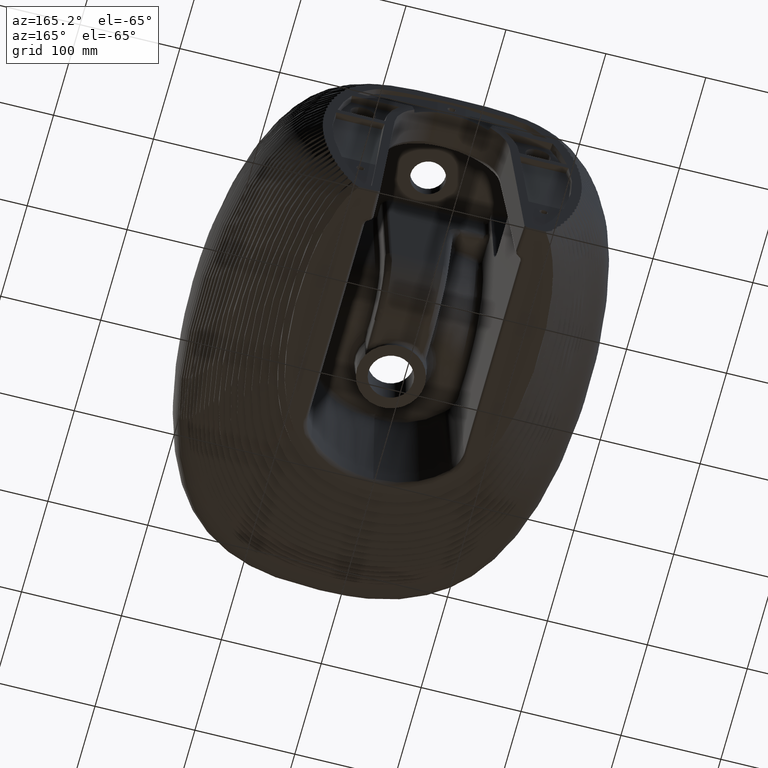
[diagram: clean part render]
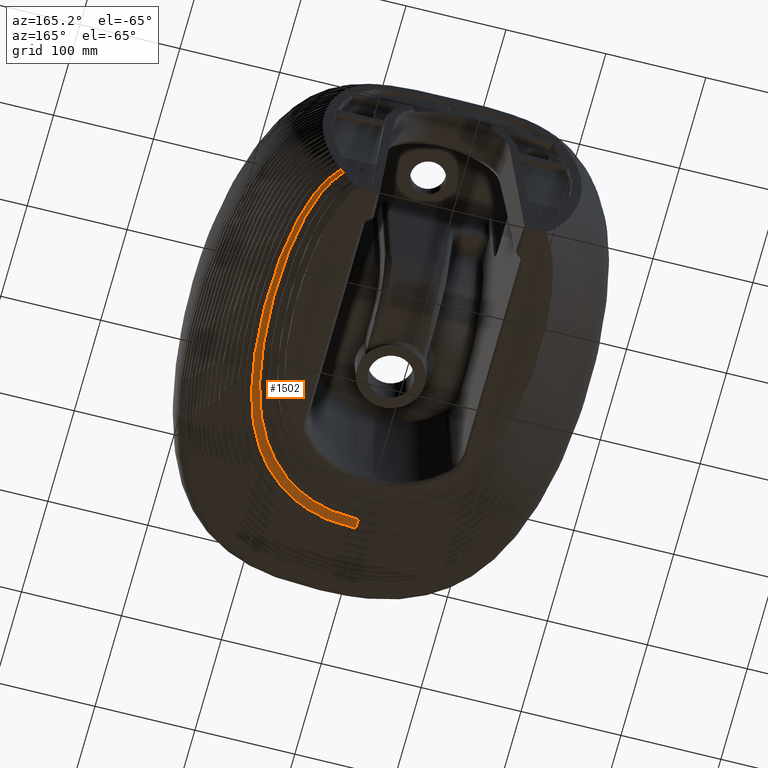
[diagram: same view with one face highlighted and labeled with its STEP entity id]
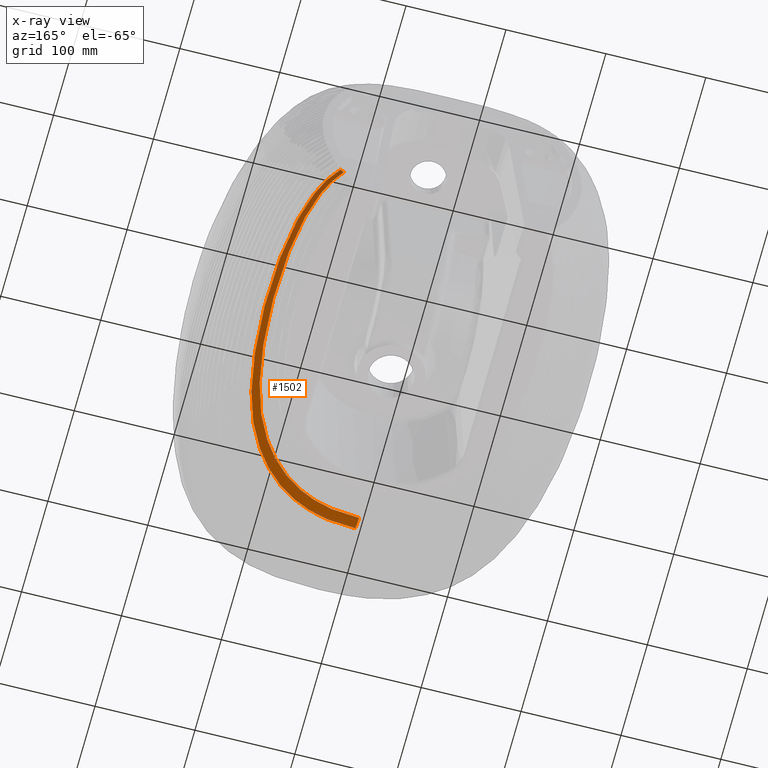
[diagram: x-ray of the same camera — body ghosted, the highlighted face saturated]
A machine part, auxiliary view. The second image highlights one B-rep face of the part: STEP entity #1502.
The next image is the same camera in x-ray: the body ghosted, the highlighted face saturated — about 0% of this face is hidden behind the body in this view.
In plain terms, the highlighted face is a freeform B-spline surface patch.
Its self-contained STEP definition (entity closure, byte-faithful):
#292=B_SPLINE_SURFACE_WITH_KNOTS('',3,5,((#63158,#63159,#63160,#63161,#63162,
#63163,#63164,#63165,#63166,#63167,#63168,#63169,#63170,#63171,#63172,#63173,
#63174,#63175,#63176,#63177,#63178,#63179,#63180),(#63181,#63182,#63183,
#63184,#63185,#63186,#63187,#63188,#63189,#63190,#63191,#63192,#63193,#63194,
#63195,#63196,#63197,#63198,#63199,#63200,#63201,#63202,#63203),(#63204,
#63205,#63206,#63207,#63208,#63209,#63210,#63211,#63212,#63213,#63214,#63215,
#63216,#63217,#63218,#63219,#63220,#63221,#63222,#63223,#63224,#63225,#63226),
(#63227,#63228,#63229,#63230,#63231,#63232,#63233,#63234,#63235,#63236,
#63237,#63238,#63239,#63240,#63241,#63242,#63243,#63244,#63245,#63246,#63247,
#63248,#63249),(#63250,#63251,#63252,#63253,#63254,#63255,#63256,#63257,
#63258,#63259,#63260,#63261,#63262,#63263,#63264,#63265,#63266,#63267,#63268,
#63269,#63270,#63271,#63272),(#63273,#63274,#63275,#63276,#63277,#63278,
#63279,#63280,#63281,#63282,#63283,#63284,#63285,#63286,#63287,#63288,#63289,
#63290,#63291,#63292,#63293,#63294,#63295),(#63296,#63297,#63298,#63299,
#63300,#63301,#63302,#63303,#63304,#63305,#63306,#63307,#63308,#63309,#63310,
#63311,#63312,#63313,#63314,#63315,#63316,#63317,#63318)),.UNSPECIFIED.,
 .F.,.F.,.F.,(4,3,4),(6,5,1,1,1,1,1,1,1,5,6),(0.,0.99009900990099,1.),(0.,
0.104699570866284,0.204842185105209,0.301914850876388,0.39898751664757,
0.496060182418749,0.593132848189929,0.690205513961109,0.787278179732288,
0.884615384615384,1.),.UNSPECIFIED.);
#885=B_SPLINE_CURVE_WITH_KNOTS('',3,(#7826,#7827,#7828,#7829,#7830,#7831,
#7832,#7833,#7834,#7835,#7836,#7837,#7838,#7839,#7840,#7841),
 .UNSPECIFIED.,.F.,.F.,(4,3,3,3,3,4),(0.,0.00215770359916773,0.394983102324143,
0.6904928226794,0.98591444080971,1.),.UNSPECIFIED.);
#1058=B_SPLINE_CURVE_WITH_KNOTS('',3,(#31376,#31377,#31378,#31379,#31380,
#31381,#31382),.UNSPECIFIED.,.F.,.F.,(4,3,4),(0.,0.00990099009900991,1.),
 .UNSPECIFIED.);
#1125=B_SPLINE_CURVE_WITH_KNOTS('',5,(#41868,#41869,#41870,#41871,#41872,
#41873,#41874,#41875,#41876,#41877,#41878,#41879,#41880),.UNSPECIFIED.,
 .F.,.F.,(6,1,1,1,1,1,1,1,6),(0.,0.128291355225065,0.256234063589181,0.384176771953297,
0.512119480317413,0.640062188681529,0.768004897045647,0.895947605409763,
1.),.UNSPECIFIED.);
#1195=B_SPLINE_CURVE_WITH_KNOTS('',5,(#62570,#62571,#62572,#62573,#62574,
#62575,#62576,#62577,#62578,#62579,#62580,#62581,#62582),.UNSPECIFIED.,
 .F.,.F.,(6,1,1,1,1,1,1,1,6),(0.,0.128018465227744,0.255689024344481,0.383359583461218,
0.511030142577955,0.638700701694692,0.766371260811432,0.894041819928169,
1.),.UNSPECIFIED.);
#1502=ADVANCED_FACE('',(#1862),#292,.T.);
#1862=FACE_OUTER_BOUND('',#2216,.T.);
#2216=EDGE_LOOP('',(#3458,#3459,#3460,#3461));
#3458=ORIENTED_EDGE('',*,*,#5120,.F.);
#3459=ORIENTED_EDGE('',*,*,#4938,.T.);
#3460=ORIENTED_EDGE('',*,*,#5049,.T.);
#3461=ORIENTED_EDGE('',*,*,#4703,.F.);
#4194=VERTEX_POINT('',#7825);
#4195=VERTEX_POINT('',#7842);
#4255=VERTEX_POINT('',#9636);
#4331=VERTEX_POINT('',#30783);
#4703=EDGE_CURVE('',#4194,#4195,#885,.T.);
#4938=EDGE_CURVE('',#4331,#4255,#1058,.T.);
#5049=EDGE_CURVE('',#4255,#4195,#1125,.T.);
#5120=EDGE_CURVE('',#4331,#4194,#1195,.T.);
#7825=CARTESIAN_POINT('',(111.976333239945,-3.44499998660146,74.9741793575379));
#7826=CARTESIAN_POINT('',(111.976333239945,-3.44499998660146,74.9741793575379));
#7827=CARTESIAN_POINT('',(111.97392768075,-3.44499998660146,74.971265391539));
#7828=CARTESIAN_POINT('',(111.971521933031,-3.44499998660147,74.9683515811609));
#7829=CARTESIAN_POINT('',(111.969115996832,-3.44499998660147,74.9654379264297));
#7830=CARTESIAN_POINT('',(111.531128168377,-3.44499998660147,74.4350226522933));
#7831=CARTESIAN_POINT('',(111.086862475442,-3.44499998660147,73.909731048177));
#7832=CARTESIAN_POINT('',(110.636583050047,-3.44499998660147,73.3897097601721));
#7833=CARTESIAN_POINT('',(110.297842305705,-3.44499998660147,72.9985029045209));
#7834=CARTESIAN_POINT('',(109.95566829305,-3.44499998660146,72.6102432944991));
#7835=CARTESIAN_POINT('',(109.610176764252,-3.44499998660146,72.2249853298636));
#7836=CARTESIAN_POINT('',(109.264788027844,-3.44499998660146,71.8398419891298));
#7837=CARTESIAN_POINT('',(108.916058004676,-3.44499998660145,71.4576697332565));
#7838=CARTESIAN_POINT('',(108.564104401779,-3.44499998660145,71.0785161580962));
#7839=CARTESIAN_POINT('',(108.54732281523,-3.44499998660145,71.0604376429605));
#7840=CARTESIAN_POINT('',(108.530533869669,-3.44499998660147,71.042365956127));
#7841=CARTESIAN_POINT('',(108.513737577945,-3.44499998660147,71.0243011023783));
#7842=CARTESIAN_POINT('',(108.513737577945,-3.44499998660146,71.0243011023783));
#9636=CARTESIAN_POINT('',(8.54049891280419E-7,-356.539715909405,71.0243011023783));
#30783=CARTESIAN_POINT('',(-1.13623574557939E-13,-370.046254246198,74.9741793575379));
#31376=CARTESIAN_POINT('',(-8.33776854780811E-9,-370.177679020104,75.0141481856114));
#31377=CARTESIAN_POINT('',(-5.55855023973357E-9,-370.133870762135,75.0008252429202));
#31378=CARTESIAN_POINT('',(-2.77933193165489E-9,-370.090062504167,74.987502300229));
#31379=CARTESIAN_POINT('',(-1.13623574557939E-13,-370.046254246198,74.9741793575379));
#31380=CARTESIAN_POINT('',(2.77921717184267E-7,-365.665428449342,73.6418850884211));
#31381=CARTESIAN_POINT('',(5.62076444486297E-7,-361.166103739476,72.3248201164626));
#31382=CARTESIAN_POINT('',(8.54049891280419E-7,-356.539715909405,71.0243011023783));
#41868=CARTESIAN_POINT('',(-3.51665006985723E-12,-356.539715910313,71.0243011023783));
#41869=CARTESIAN_POINT('',(25.3352453123432,-356.566626123904,71.0243011023783));
#41870=CARTESIAN_POINT('',(53.3687540552651,-349.041033567253,71.0243011023783));
#41871=CARTESIAN_POINT('',(82.8565677550879,-333.695948220514,71.0243011023783));
#41872=CARTESIAN_POINT('',(110.652129976795,-300.186372951527,71.0243011023783));
#41873=CARTESIAN_POINT('',(129.450303977176,-256.18251700493,71.0243011023783));
#41874=CARTESIAN_POINT('',(139.526448976091,-194.787394314876,71.0243011023783));
#41875=CARTESIAN_POINT('',(141.544360119863,-134.040547180717,71.0243011023783));
#41876=CARTESIAN_POINT('',(138.308191446065,-86.5681866329002,71.0243011023783));
#41877=CARTESIAN_POINT('',(131.680597713163,-46.893494213998,71.0243011023783));
#41878=CARTESIAN_POINT('',(121.844391669293,-22.0369091347559,71.0243011023783));
#41879=CARTESIAN_POINT('',(113.01400216611,-8.78313307742031,71.0243011023783));
#41880=CARTESIAN_POINT('',(108.513737577945,-3.44499998660147,71.0243011023783));
#62570=CARTESIAN_POINT('',(-1.79734885362333E-12,-370.046254246198,74.9741793575379));
#62571=CARTESIAN_POINT('',(26.59671853951,-370.070162514386,74.9741793575379));
#62572=CARTESIAN_POINT('',(55.7007062613904,-362.264118029014,74.9741793575379));
#62573=CARTESIAN_POINT('',(86.6131145731902,-346.806278665936,74.9741793575379));
#62574=CARTESIAN_POINT('',(115.768497975709,-311.685927595264,74.9741793575379));
#62575=CARTESIAN_POINT('',(135.127635305038,-265.819667098073,74.9741793575379));
#62576=CARTESIAN_POINT('',(145.149383730303,-202.623994143881,74.9741793575379));
#62577=CARTESIAN_POINT('',(147.227712832879,-139.083891795642,74.9741793575379));
#62578=CARTESIAN_POINT('',(143.623327876378,-89.7812475005008,74.9741793575379));
#62579=CARTESIAN_POINT('',(136.601548111309,-48.4445301445217,74.9741793575379));
#62580=CARTESIAN_POINT('',(126.190577412701,-22.6771173637318,74.9741793575379));
#62581=CARTESIAN_POINT('',(116.814277752548,-8.98977580960338,74.9741793575379));
#62582=CARTESIAN_POINT('',(111.976333239945,-3.44499998660137,74.9741793575379));
#63158=CARTESIAN_POINT('',(68.2796428677642,34.2305269345919,71.0243011023783));
#63159=CARTESIAN_POINT('',(75.038894436191,28.0394788118053,71.0243011023783));
#63160=CARTESIAN_POINT('',(81.7981460046178,21.8484306890188,71.0243011023783));
#63161=CARTESIAN_POINT('',(88.5573975730447,15.6573825662322,71.0243011023783));
#63162=CARTESIAN_POINT('',(95.3166491414715,9.46633444344565,71.0243011023783));
#63163=CARTESIAN_POINT('',(102.075900709898,3.27528632065908,71.0243011023783));
#63164=CARTESIAN_POINT('',(108.540961805758,-2.64630188419277,71.0243011023783));
#63165=CARTESIAN_POINT('',(119.463407864964,-16.3315407214195,71.0243011023783));
#63166=CARTESIAN_POINT('',(130.908267799802,-42.343096417873,71.0243011023783));
#63167=CARTESIAN_POINT('',(138.161384153544,-84.4146249913114,71.0243011023783));
#63168=CARTESIAN_POINT('',(141.544360119863,-134.040547180717,71.0243011023783));
#63169=CARTESIAN_POINT('',(139.526448976091,-194.787394314876,71.0243011023783));
#63170=CARTESIAN_POINT('',(129.450303977176,-256.18251700493,71.0243011023783));
#63171=CARTESIAN_POINT('',(110.652129441209,-300.186374205258,71.0243011023783));
#63172=CARTESIAN_POINT('',(82.8565657755229,-333.695950607024,71.0243011023783));
#63173=CARTESIAN_POINT('',(53.368749856048,-349.041035752473,71.0243011023783));
#63174=CARTESIAN_POINT('',(25.3352373317311,-356.566628266299,71.0243011023783));
#63175=CARTESIAN_POINT('',(-1.80066724942662E-5,-356.539715891186,71.0243011023783));
#63176=CARTESIAN_POINT('',(-30.0327141006655,-356.507813659606,71.0243011023783));
#63177=CARTESIAN_POINT('',(-60.0654101946586,-356.475911428027,71.0243011023783));
#63178=CARTESIAN_POINT('',(-90.0981062886516,-356.444009196447,71.0243011023783));
#63179=CARTESIAN_POINT('',(-120.130802382645,-356.412106964867,71.0243011023783));
#63180=CARTESIAN_POINT('',(-150.163498476638,-356.380204733287,71.0243011023783));
#63181=CARTESIAN_POINT('',(69.0454900711072,34.3860499516477,72.3248201164626));
#63182=CARTESIAN_POINT('',(75.9027640712058,28.1424475627682,72.3248201164626));
#63183=CARTESIAN_POINT('',(82.7600380713044,21.8988451738887,72.3248201164626));
#63184=CARTESIAN_POINT('',(89.6173120714031,15.6552427850092,72.3248201164626));
#63185=CARTESIAN_POINT('',(96.4745860715017,9.41164039612975,72.3248201164626));
#63186=CARTESIAN_POINT('',(103.3318600716,3.16803800725025,72.3248201164626));
#63187=CARTESIAN_POINT('',(109.890677259108,-2.80381708554019,72.3248201164626));
#63188=CARTESIAN_POINT('',(120.975741608727,-16.6176505768292,72.3248201164626));
#63189=CARTESIAN_POINT('',(132.599121493358,-42.9133863905012,72.3248201164626));
#63190=CARTESIAN_POINT('',(139.982555458534,-85.5232961930211,72.3248201164626));
#63191=CARTESIAN_POINT('',(143.489548270382,-135.746079224069,72.3248201164626));
#63192=CARTESIAN_POINT('',(141.447998088004,-197.448044926979,72.3248201164626));
#63193=CARTESIAN_POINT('',(131.386816350675,-259.477478275131,72.3248201164626));
#63194=CARTESIAN_POINT('',(112.404045039493,-304.102866167139,72.3248201164626));
#63195=CARTESIAN_POINT('',(84.1397816652381,-338.174849237815,72.3248201164626));
#63196=CARTESIAN_POINT('',(54.1709199564534,-353.568689286308,72.3248201164626));
#63197=CARTESIAN_POINT('',(25.7664962852422,-361.192033291938,72.3248201164626));
#63198=CARTESIAN_POINT('',(-1.80066724942662E-5,-361.166103721922,72.3248201164626));
#63199=CARTESIAN_POINT('',(-30.5439333055093,-361.135366518537,72.3248201164626));
#63200=CARTESIAN_POINT('',(-61.0878486043461,-361.104629315153,72.3248201164626));
#63201=CARTESIAN_POINT('',(-91.6317639031829,-361.073892111768,72.3248201164626));
#63202=CARTESIAN_POINT('',(-122.17567920202,-361.043154908383,72.3248201164626));
#63203=CARTESIAN_POINT('',(-152.719594500856,-361.012417704999,72.3248201164626));
#63204=CARTESIAN_POINT('',(69.7911698756107,34.519686747024,73.6418850884211));
#63205=CARTESIAN_POINT('',(76.743954970937,28.2237687719978,73.6418850884211));
#63206=CARTESIAN_POINT('',(83.6967400662634,21.9278507969716,73.6418850884211));
#63207=CARTESIAN_POINT('',(90.6495251615897,15.6319328219454,73.6418850884211));
#63208=CARTESIAN_POINT('',(97.6023102569161,9.33601484691915,73.6418850884211));
#63209=CARTESIAN_POINT('',(104.555095352242,3.04009687189294,73.6418850884211));
#63210=CARTESIAN_POINT('',(111.205266598662,-2.98179681722437,73.6418850884211));
#63211=CARTESIAN_POINT('',(122.44883440768,-16.9222057535029,73.6418850884211));
#63212=CARTESIAN_POINT('',(134.245894927124,-43.4944281378505,73.6418850884211));
#63213=CARTESIAN_POINT('',(141.752857771977,-86.6263201035085,73.6418850884211));
#63214=CARTESIAN_POINT('',(145.384246662321,-137.42751589567,73.6418850884211));
#63215=CARTESIAN_POINT('',(143.321856799642,-200.062545340554,73.6418850884211));
#63216=CARTESIAN_POINT('',(133.279224361229,-262.690639631184,73.6418850884211));
#63217=CARTESIAN_POINT('',(114.1097068262,-307.934361113315,73.6418850884211));
#63218=CARTESIAN_POINT('',(85.390901763951,-342.544437207091,73.6418850884211));
#63219=CARTESIAN_POINT('',(54.9468291630768,-357.974058959022,73.6418850884211));
#63220=CARTESIAN_POINT('',(26.1862066111854,-365.690346686431,73.6418850884211));
#63221=CARTESIAN_POINT('',(-1.80066724942662E-5,-365.665428432473,73.6418850884211));
#63222=CARTESIAN_POINT('',(-31.0414626375882,-365.635890054496,73.6418850884211));
#63223=CARTESIAN_POINT('',(-62.0829072685038,-365.60635167652,73.6418850884211));
#63224=CARTESIAN_POINT('',(-93.1243518994195,-365.576813298544,73.6418850884211));
#63225=CARTESIAN_POINT('',(-124.165796530335,-365.547274920567,73.6418850884211));
#63226=CARTESIAN_POINT('',(-155.207241161251,-365.517736542591,73.6418850884211));
#63227=CARTESIAN_POINT('',(70.5156089130381,34.6346970482521,74.9741793575379));
#63228=CARTESIAN_POINT('',(77.5616864857518,28.2866323310686,74.9741793575379));
#63229=CARTESIAN_POINT('',(84.6077640584655,21.938567613885,74.9741793575379));
#63230=CARTESIAN_POINT('',(91.6538416311791,15.5905028967015,74.9741793575379));
#63231=CARTESIAN_POINT('',(98.6999192038928,9.24243817951799,74.9741793575379));
#63232=CARTESIAN_POINT('',(105.745996776606,2.89437346233446,74.9741793575379));
#63233=CARTESIAN_POINT('',(112.485400027485,-3.17739732790627,74.9741793575379));
#63234=CARTESIAN_POINT('',(123.883939181725,-17.242700363362,74.9741793575379));
#63235=CARTESIAN_POINT('',(135.850443223438,-44.0845877605065,74.9741793575379));
#63236=CARTESIAN_POINT('',(143.472814079109,-87.7224418241272,74.9741793575379));
#63237=CARTESIAN_POINT('',(147.227712832879,-139.083891795642,74.9741793575379));
#63238=CARTESIAN_POINT('',(145.149383730303,-202.623994143881,74.9741793575379));
#63239=CARTESIAN_POINT('',(135.127635305038,-265.819667098073,74.9741793575379));
#63240=CARTESIAN_POINT('',(115.768497450301,-311.685928840077,74.9741793575379));
#63241=CARTESIAN_POINT('',(86.6131125952636,-346.806281048531,74.9741793575379));
#63242=CARTESIAN_POINT('',(55.7007020680927,-362.264120125885,74.9741793575379));
#63243=CARTESIAN_POINT('',(26.5967106471236,-370.07016463122,74.9741793575379));
#63244=CARTESIAN_POINT('',(-1.80066724942662E-5,-370.046254230011,74.9741793575379));
#63245=CARTESIAN_POINT('',(-31.5280787301444,-370.017910571997,74.9741793575379));
#63246=CARTESIAN_POINT('',(-63.0561394536163,-369.989566913984,74.9741793575379));
#63247=CARTESIAN_POINT('',(-94.5842001770882,-369.96122325597,74.9741793575379));
#63248=CARTESIAN_POINT('',(-126.11226090056,-369.932879597957,74.9741793575379));
#63249=CARTESIAN_POINT('',(-157.640321624032,-369.904535939944,74.9741793575379));
#63250=CARTESIAN_POINT('',(70.5228533034124,34.6358471512644,74.987502300229));
#63251=CARTESIAN_POINT('',(77.5698638008999,28.2872609666593,74.987502300229));
#63252=CARTESIAN_POINT('',(84.6168742983875,21.9386747820542,74.987502300229));
#63253=CARTESIAN_POINT('',(91.663884795875,15.5900885974491,74.987502300229));
#63254=CARTESIAN_POINT('',(98.7108952933626,9.24150241284398,74.987502300229));
#63255=CARTESIAN_POINT('',(105.75790579085,2.89291622823888,74.987502300229));
#63256=CARTESIAN_POINT('',(112.498201361773,-3.17935333301309,74.987502300229));
#63257=CARTESIAN_POINT('',(123.898290229465,-17.2459053094606,74.987502300229));
#63258=CARTESIAN_POINT('',(135.866488706401,-44.0904893567331,74.987502300229));
#63259=CARTESIAN_POINT('',(143.49001364218,-87.7334030413334,74.987502300229));
#63260=CARTESIAN_POINT('',(147.246147494585,-139.100455554642,74.987502300229));
#63261=CARTESIAN_POINT('',(145.167658999609,-202.649608631915,74.987502300229));
#63262=CARTESIAN_POINT('',(135.146119414477,-265.850957372741,74.987502300229));
#63263=CARTESIAN_POINT('',(115.785085356542,-311.723444517344,74.987502300229));
#63264=CARTESIAN_POINT('',(86.6253347035768,-346.848899486945,74.987502300229));
#63265=CARTESIAN_POINT('',(55.7082407971428,-362.307020737553,74.987502300229));
#63266=CARTESIAN_POINT('',(26.600815687483,-370.113962810668,74.987502300229));
#63267=CARTESIAN_POINT('',(-1.80066724942662E-5,-370.090062487986,74.987502300229));
#63268=CARTESIAN_POINT('',(-31.5329448910699,-370.061730777172,74.987502300229));
#63269=CARTESIAN_POINT('',(-63.0658717754674,-370.033399066359,74.987502300229));
#63270=CARTESIAN_POINT('',(-94.5987986598648,-370.005067355545,74.987502300229));
#63271=CARTESIAN_POINT('',(-126.131725544262,-369.976735644731,74.987502300229));
#63272=CARTESIAN_POINT('',(-157.66465242866,-369.948403933917,74.987502300229));
#63273=CARTESIAN_POINT('',(70.5300976937867,34.6369972542767,75.0008252429202));
#63274=CARTESIAN_POINT('',(77.5780411160481,28.28788960225,75.0008252429202));
#63275=CARTESIAN_POINT('',(84.6259845383095,21.9387819502233,75.0008252429202));
#63276=CARTESIAN_POINT('',(91.6739279605709,15.5896742981966,75.0008252429202));
#63277=CARTESIAN_POINT('',(98.7218713828323,9.24056664616997,75.0008252429202));
#63278=CARTESIAN_POINT('',(105.769814805094,2.89145899414329,75.0008252429202));
#63279=CARTESIAN_POINT('',(112.511002696061,-3.18130933811991,75.0008252429202));
#63280=CARTESIAN_POINT('',(123.912641277205,-17.2491102555592,75.0008252429202));
#63281=CARTESIAN_POINT('',(135.882534189364,-44.0963909529596,75.0008252429202));
#63282=CARTESIAN_POINT('',(143.507213205251,-87.7443642585396,75.0008252429202));
#63283=CARTESIAN_POINT('',(147.26458215629,-139.117019313642,75.0008252429202));
#63284=CARTESIAN_POINT('',(145.185934268916,-202.675223119948,75.0008252429202));
#63285=CARTESIAN_POINT('',(135.164603523915,-265.88224764741,75.0008252429202));
#63286=CARTESIAN_POINT('',(115.801673262783,-311.760960194612,75.0008252429202));
#63287=CARTESIAN_POINT('',(86.6375568118899,-346.89151792536,75.0008252429202));
#63288=CARTESIAN_POINT('',(55.715779526193,-362.349921349222,75.0008252429202));
#63289=CARTESIAN_POINT('',(26.6049207278423,-370.157760990116,75.0008252429202));
#63290=CARTESIAN_POINT('',(-1.80066724942662E-5,-370.133870745962,75.0008252429202));
#63291=CARTESIAN_POINT('',(-31.5378110519955,-370.105550982347,75.0008252429202));
#63292=CARTESIAN_POINT('',(-63.0756040973185,-370.077231218733,75.0008252429202));
#63293=CARTESIAN_POINT('',(-94.6133971426415,-370.048911455119,75.0008252429202));
#63294=CARTESIAN_POINT('',(-126.151190187965,-370.020591691505,75.0008252429202));
#63295=CARTESIAN_POINT('',(-157.688983233288,-369.992271927891,75.0008252429202));
#63296=CARTESIAN_POINT('',(70.5373420841609,34.6381473572889,75.0141481856114));
#63297=CARTESIAN_POINT('',(77.5862184311962,28.2885182378407,75.0141481856114));
#63298=CARTESIAN_POINT('',(84.6350947782315,21.9388891183924,75.0141481856114));
#63299=CARTESIAN_POINT('',(91.6839711252668,15.5892599989442,75.0141481856114));
#63300=CARTESIAN_POINT('',(98.7328474723021,9.23963087949596,75.0141481856114));
#63301=CARTESIAN_POINT('',(105.781723819337,2.89000176004771,75.0141481856114));
#63302=CARTESIAN_POINT('',(112.52380403035,-3.18326534322672,75.0141481856114));
#63303=CARTESIAN_POINT('',(123.926992324946,-17.2523152016578,75.0141481856114));
#63304=CARTESIAN_POINT('',(135.898579672328,-44.1022925491862,75.0141481856114));
#63305=CARTESIAN_POINT('',(143.524412768323,-87.7553254757458,75.0141481856114));
#63306=CARTESIAN_POINT('',(147.283016817996,-139.133583072641,75.0141481856114));
#63307=CARTESIAN_POINT('',(145.204209538223,-202.700837607981,75.0141481856114));
#63308=CARTESIAN_POINT('',(135.183087633353,-265.913537922079,75.0141481856114));
#63309=CARTESIAN_POINT('',(115.818261169024,-311.79847587188,75.0141481856114));
#63310=CARTESIAN_POINT('',(86.649778920203,-346.934136363774,75.0141481856114));
#63311=CARTESIAN_POINT('',(55.7233182552431,-362.392821960891,75.0141481856114));
#63312=CARTESIAN_POINT('',(26.6090257682017,-370.201559169564,75.0141481856114));
#63313=CARTESIAN_POINT('',(-1.80066724942662E-5,-370.177679003937,75.0141481856114));
#63314=CARTESIAN_POINT('',(-31.5426772129211,-370.149371187522,75.0141481856114));
#63315=CARTESIAN_POINT('',(-63.0853364191697,-370.121063371108,75.0141481856114));
#63316=CARTESIAN_POINT('',(-94.6279956254182,-370.092755554693,75.0141481856114));
#63317=CARTESIAN_POINT('',(-126.170654831667,-370.064447738279,75.0141481856114));
#63318=CARTESIAN_POINT('',(-157.713314037915,-370.036139921864,75.0141481856114));